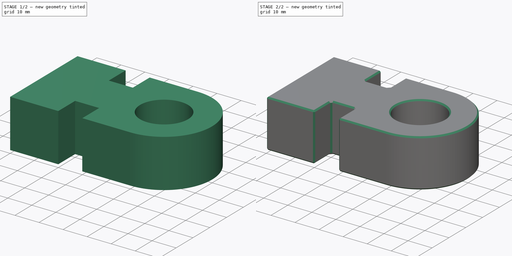
[diagram: build sequence overview — one tinted view per stage of 2, left to right]
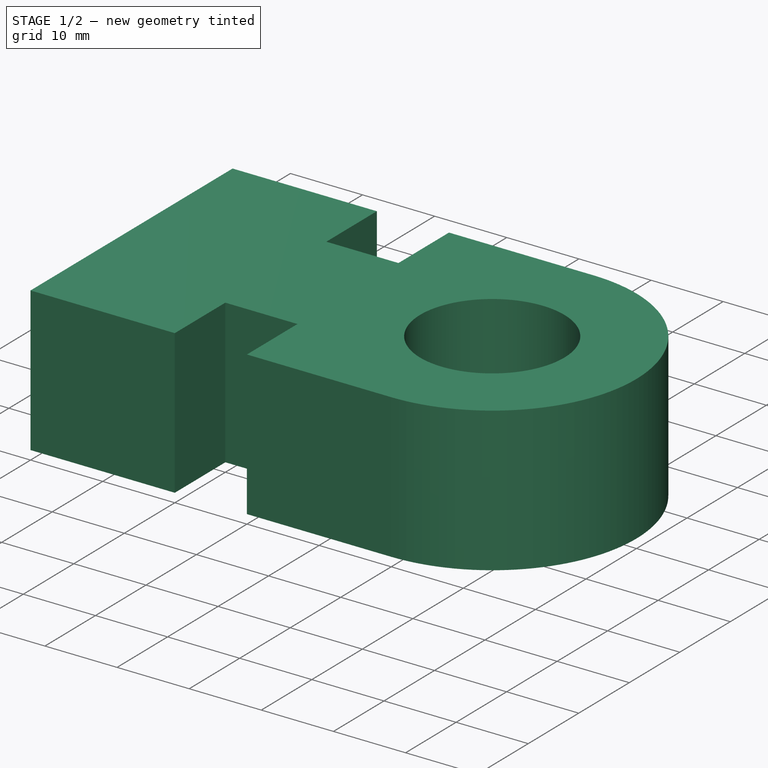
[diagram: stage 1 of 2 — iso view after this stage's code; geometry added in this stage tinted green]
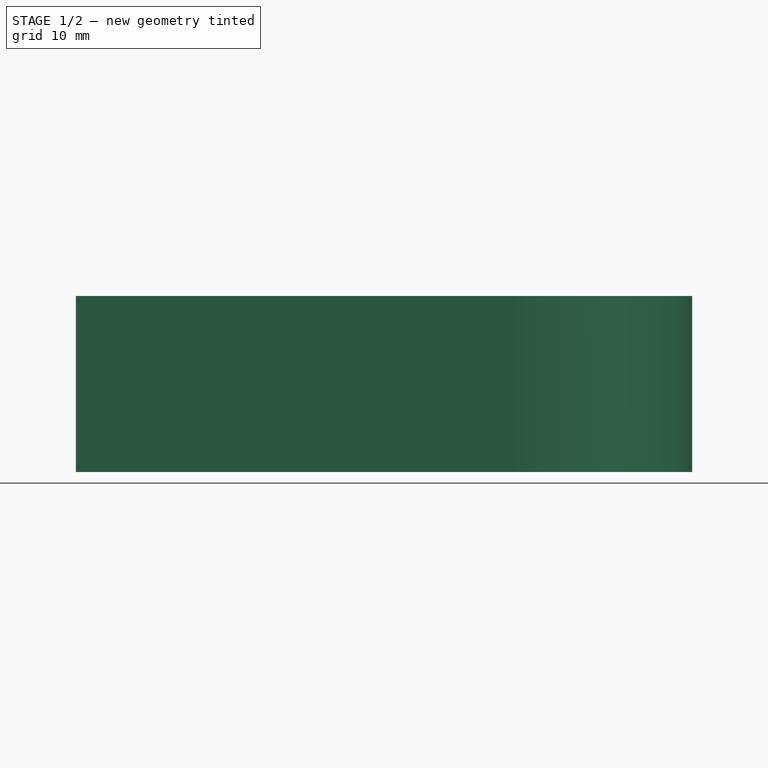
[diagram: stage 1 of 2 — front view after this stage's code; geometry added in this stage tinted green]
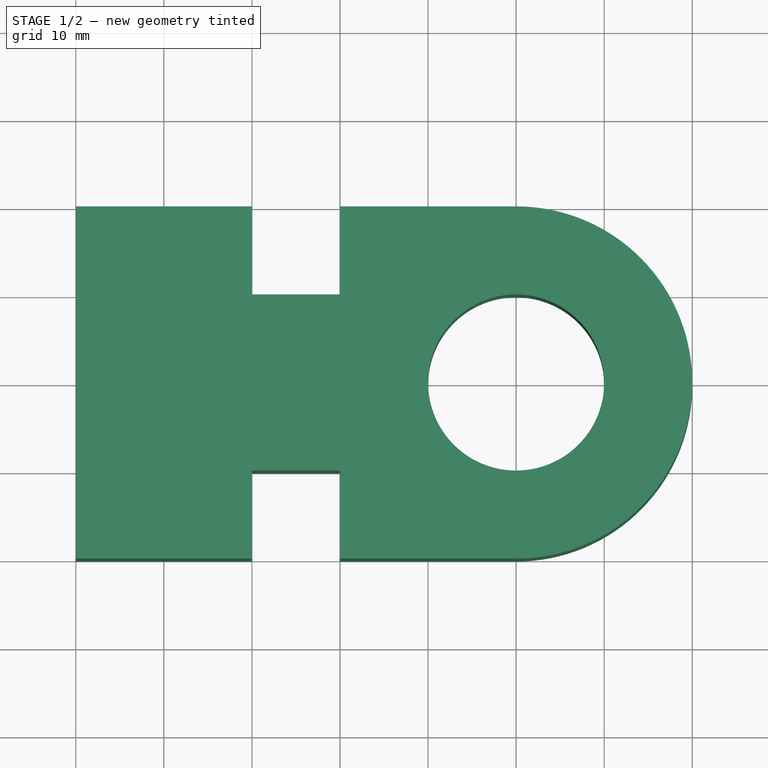
[diagram: stage 1 of 2 — top view after this stage's code; geometry added in this stage tinted green]
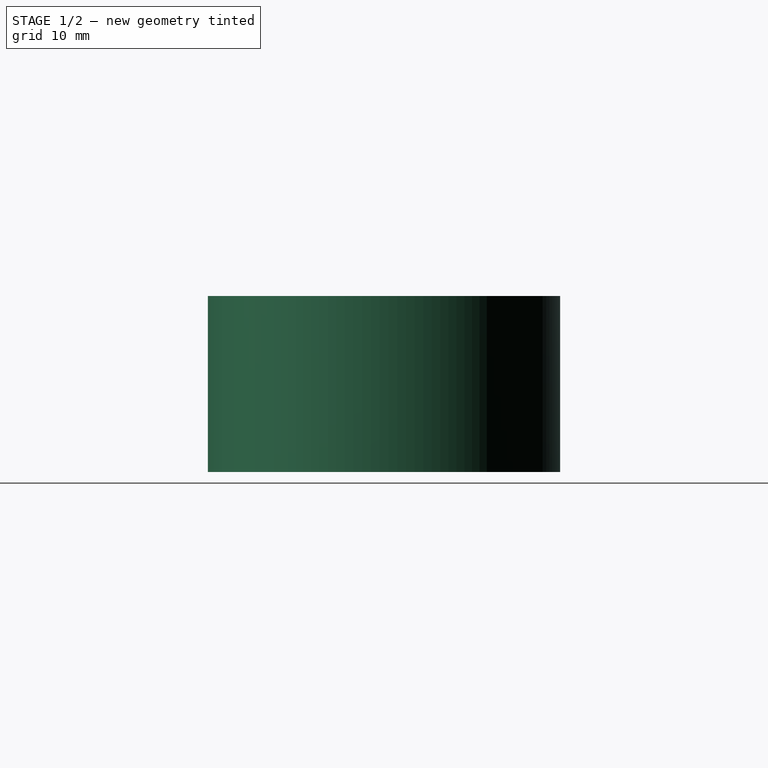
[diagram: stage 1 of 2 — right view after this stage's code; geometry added in this stage tinted green]
FCSTD DOCUMENT  (FreeCAD 1.0R39109 (Git))
Label: 32
License: All rights reserved
LicenseURL: https://en.wikipedia.org/wiki/All_rights_reserved
objects: Sketcher::SketchObject×1, PartDesign::Pad×1, PartDesign::Chamfer×1, PartDesign::Body×1
note: 9 computed .brp shape members not serialized (recipe doc carries the construction recipe); baked Part::Feature solids carry a one-line shape summary decoded from their .brp

FEATURE [Sketcher::SketchObject] Sketch
  ArcFitTolerance = 1e-06
  AttachmentSupport = -> [XY_Plane]
  FullyConstrained = true
  MakeInternals = false
  MapMode = 5
  sketch-geometry (14):
    g0: LineSegment StartX=-50 StartY=20 StartZ=0 EndX=-50 EndY=-20 EndZ=0
    g1: LineSegment StartX=-50 StartY=-20 StartZ=0 EndX=-30 EndY=-20 EndZ=0
    g2: LineSegment StartX=-30 StartY=-20 StartZ=0 EndX=-30 EndY=-10 EndZ=0
    g3: LineSegment StartX=-30 StartY=-10 StartZ=0 EndX=-20 EndY=-10 EndZ=0
    g4: LineSegment StartX=-20 StartY=-10 StartZ=0 EndX=-20 EndY=-20 EndZ=0
    g5: LineSegment StartX=-20 StartY=-20 StartZ=0 EndX=-7.1e-15 EndY=-20 EndZ=0
    g6: LineSegment StartX=2.3e-15 StartY=20 StartZ=0 EndX=-20 EndY=20 EndZ=0
    g7: LineSegment StartX=-20 StartY=20 StartZ=0 EndX=-20 EndY=10 EndZ=0
    g8: LineSegment StartX=-20 StartY=10 StartZ=0 EndX=-30 EndY=10 EndZ=0
    g9: LineSegment StartX=-30 StartY=10 StartZ=0 EndX=-30 EndY=20 EndZ=0
    g10: LineSegment StartX=-30 StartY=20 StartZ=0 EndX=-50 EndY=20 EndZ=0
    g11: GeomPoint X=-50 Y=0 Z=0
    g12: ArcOfCircle CenterX=3.08555e-05 CenterY=0 CenterZ=0 NormalX=0 NormalY=0 NormalZ=1 AngleXU=0 Radius=20 StartAngle=4.71239 EndAngle=7.85398
    g13: Circle CenterX=3.08555e-05 CenterY=0 CenterZ=0 NormalX=0 NormalY=0 NormalZ=1 AngleXU=0 Radius=10
  constraints (40):
    c: Vertical(g0)
    c: Coincident(g0,g1)
    c: Horizontal(g1)
    c: Coincident(g1,g2)
    c: Vertical(g2)
    c: Coincident(g2,g3)
    c: Horizontal(g3)
    c: Coincident(g3,g4)
    c: Vertical(g4)
    c: Coincident(g4,g5)
    c: Horizontal(g5)
    c: Horizontal(g6)
    c: Coincident(g6,g7)
    c: Vertical(g7)
    c: Coincident(g7,g8)
    c: Horizontal(g8)
    c: Coincident(g8,g9)
    c: Vertical(g9)
    c: Coincident(g9,g10)
    c: Coincident(g10,g0)
    c: Horizontal(g10)
    c: Equal(g10,g1)
    c: Equal(g9,g7)
    c: Equal(g7,g2)
    c: Equal(g2,g4)
    c: Equal(g8,g3)
    c: DistanceY(g9,g9) = 10
    c: DistanceX(g10,g10) = 20
    c: DistanceX(g8,g8) = 10
    c: Equal(g6,g5)
    c: DistanceX(g6,g6) = 20
    c: DistanceY(g0,g0) = 40
    c: Symmetric(g0,g0,g11)
    c: PointOnObject(g11,g-1)
    c: Coincident(g12,g6)
    c: Coincident(g12,g5)
    c: Diameter(g12) = 40
    c: PointOnObject(g6,g-2)
    c: Diameter(g13) = 20
    c: Coincident(g13,g12)
FEATURE [PartDesign::Pad] Pad
  Direction = (0,0,1)
  Length = 20
  Length2 = 10
  Profile = -> Sketch
  ReferenceAxis = -> Sketch [N_Axis]
  Refine = true
  Suppressed = false
  Type = 0
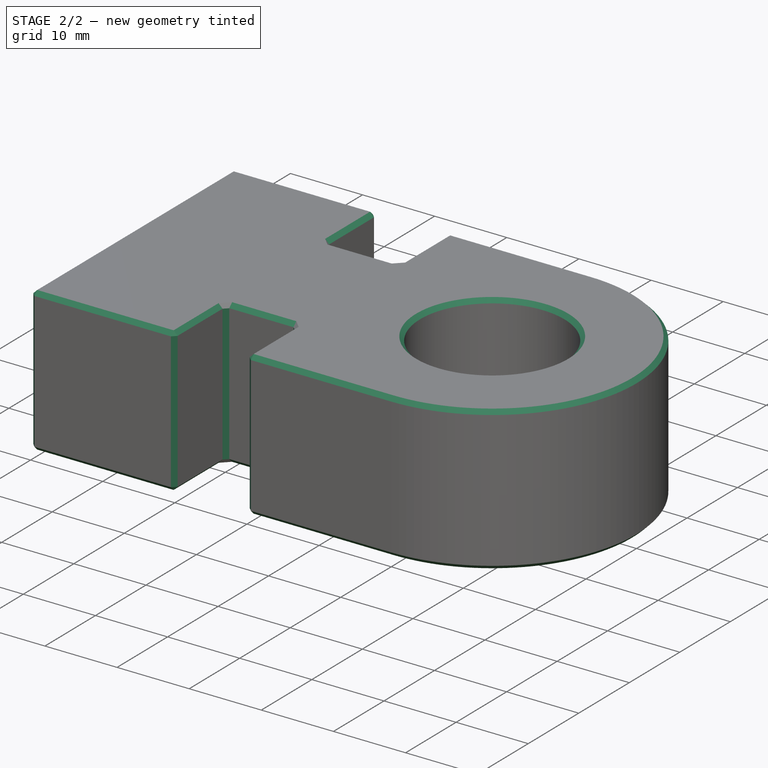
[diagram: stage 2 of 2 — iso view after this stage's code; geometry added in this stage tinted green]
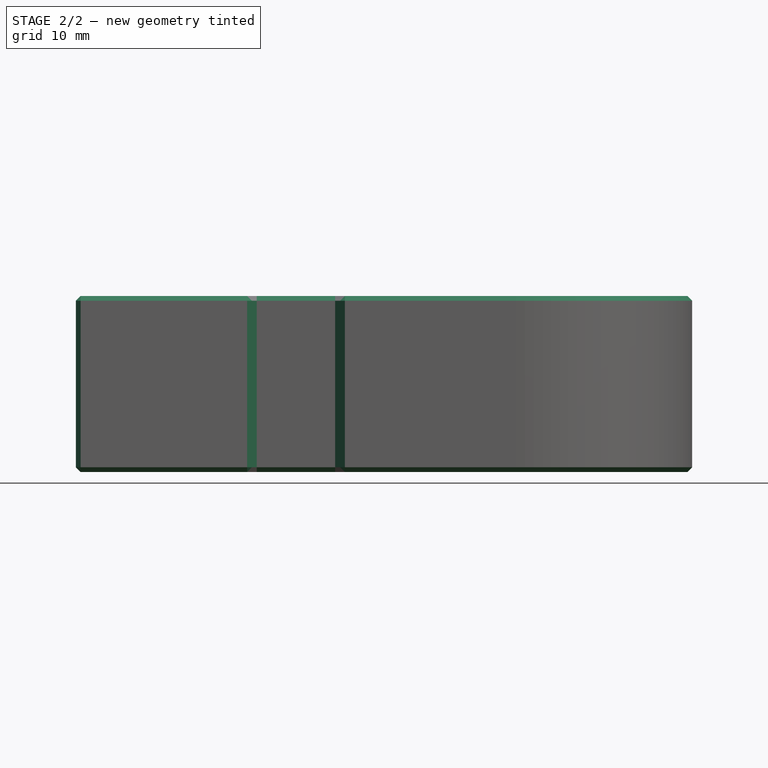
[diagram: stage 2 of 2 — front view after this stage's code; geometry added in this stage tinted green]
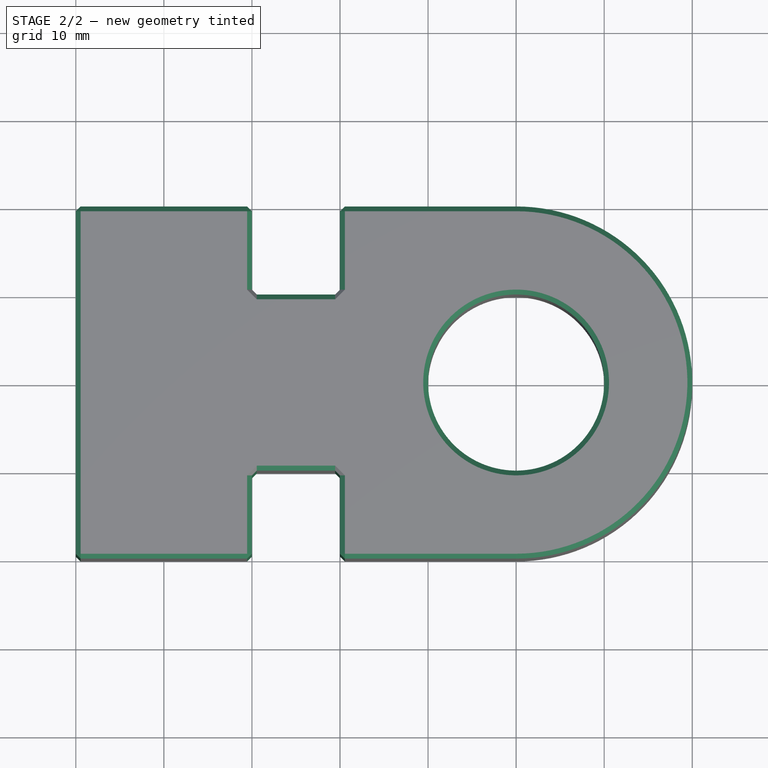
[diagram: stage 2 of 2 — top view after this stage's code; geometry added in this stage tinted green]
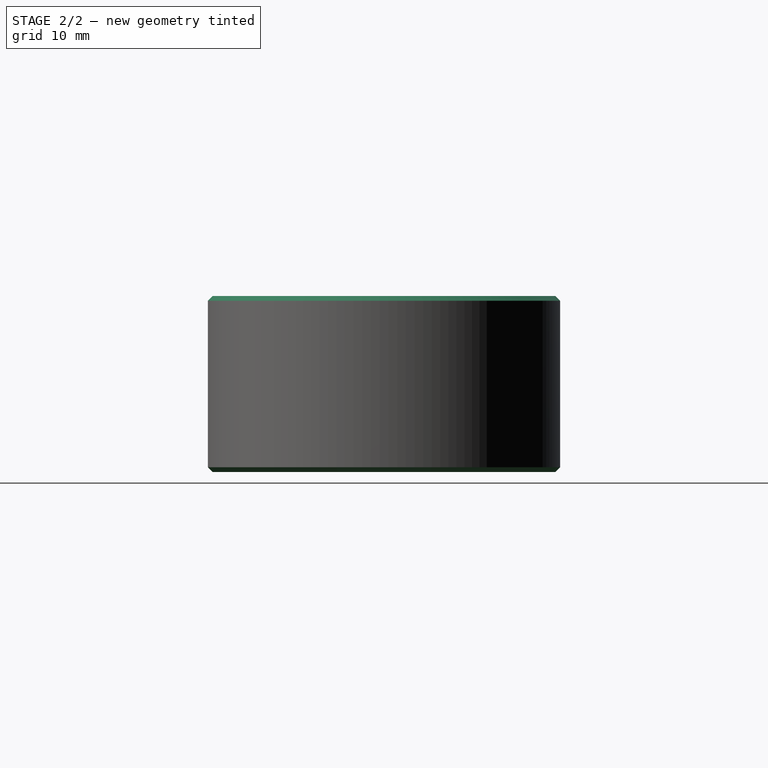
[diagram: stage 2 of 2 — right view after this stage's code; geometry added in this stage tinted green]
FEATURE [PartDesign::Chamfer] Chamfer
  Angle = 45
  Base = -> Pad
  BaseFeature = -> Pad
  ChamferType = 0
  FlipDirection = false
  Refine = true
  Size = 0.55
  Size2 = 1
  SupportTransform = false
  Suppressed = false
  UseAllEdges = true
FEATURE [PartDesign::Body] Body
  AllowCompound = false
  Group = -> [Sketch,Pad,Chamfer]
  Origin = -> Origin
  Tip = -> Chamfer
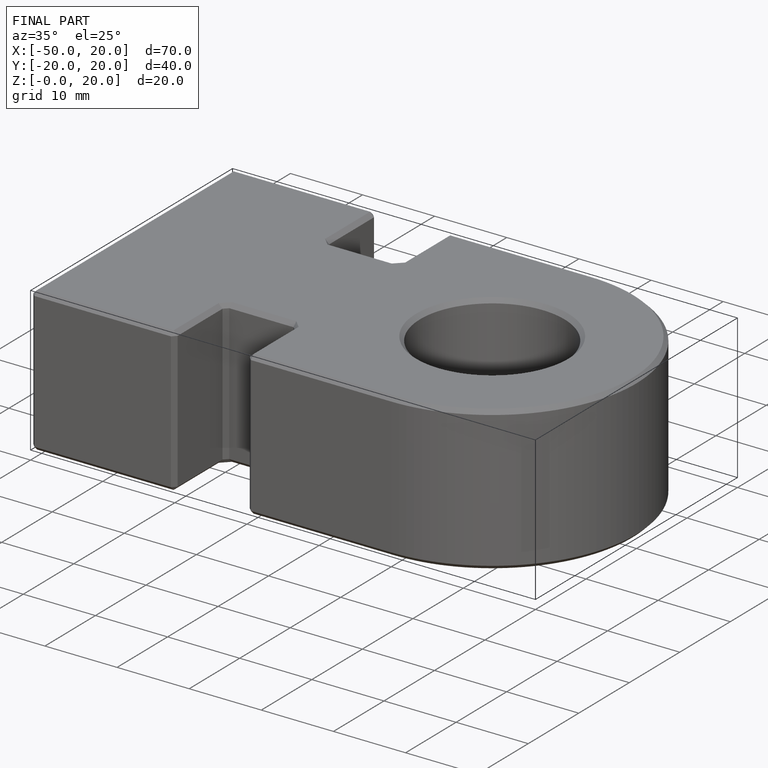
[diagram: finished part — iso view with bounding-box wireframe]
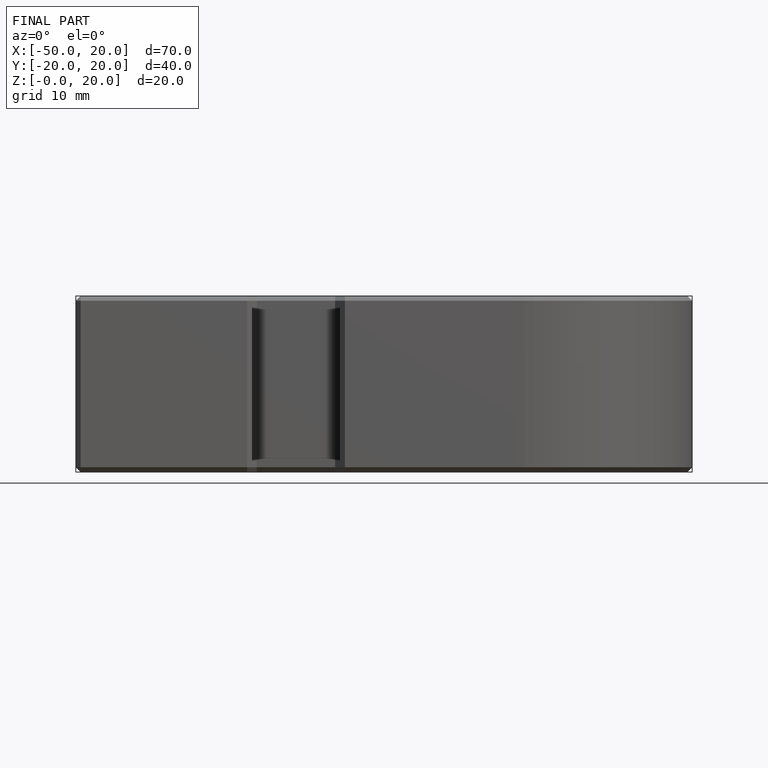
[diagram: finished part — front view with bounding-box wireframe]
